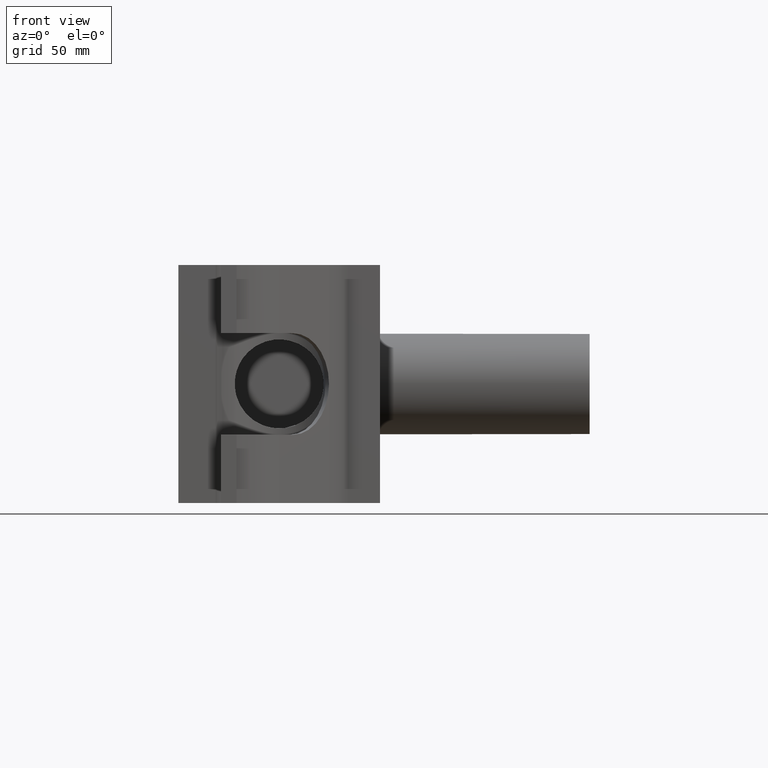
[diagram: clean part render]
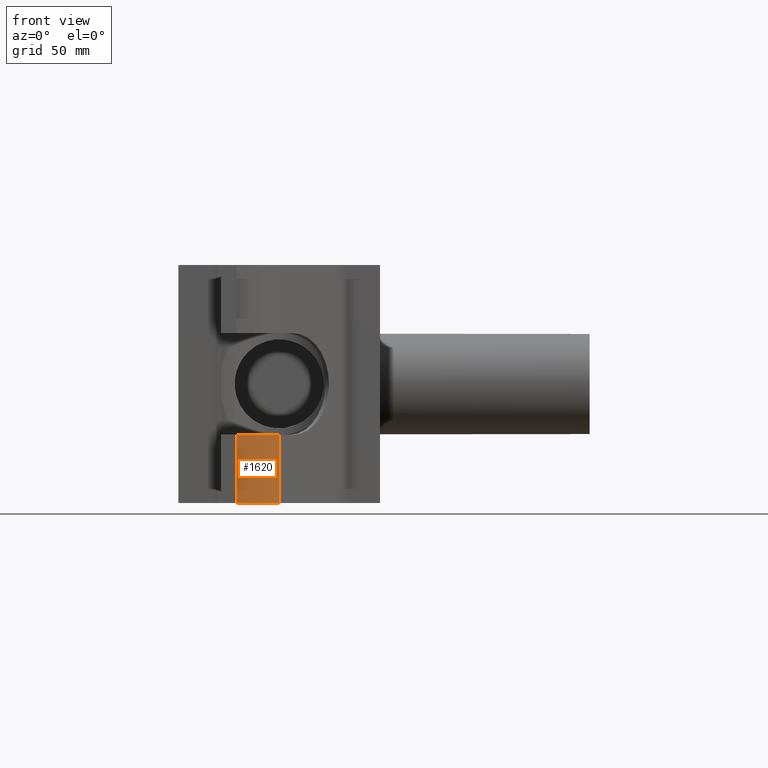
[diagram: same view with one face highlighted and labeled with its STEP entity id]
A machine part, front view. The second image highlights one B-rep face of the part: STEP entity #1620.
In plain terms, the highlighted cylindrical surface (partial cylindrical patch) has radius 34.9751 mm, axis along (0, 0, -1).
Its self-contained STEP definition (entity closure, byte-faithful):
#140=LINE('',#3262,#275);
#147=LINE('',#3275,#282);
#275=VECTOR('',#2222,33.8);
#282=VECTOR('',#2233,33.8);
#369=CYLINDRICAL_SURFACE('',#1789,34.9751164565775);
#464=FACE_OUTER_BOUND('',#598,.T.);
#598=EDGE_LOOP('',(#1407,#1408,#1409,#1410));
#667=CIRCLE('',#1770,34.9751164565775);
#674=CIRCLE('',#1790,34.9751164565775);
#796=VERTEX_POINT('',#3214);
#797=VERTEX_POINT('',#3216);
#810=VERTEX_POINT('',#3261);
#814=VERTEX_POINT('',#3273);
#988=EDGE_CURVE('',#797,#796,#667,.T.);
#1011=EDGE_CURVE('',#797,#810,#140,.T.);
#1018=EDGE_CURVE('',#796,#814,#147,.T.);
#1021=EDGE_CURVE('',#810,#814,#674,.T.);
#1407=ORIENTED_EDGE('',*,*,#988,.T.);
#1408=ORIENTED_EDGE('',*,*,#1018,.T.);
#1409=ORIENTED_EDGE('',*,*,#1021,.F.);
#1410=ORIENTED_EDGE('',*,*,#1011,.F.);
#1620=ADVANCED_FACE('',(#464),#369,.T.);
#1770=AXIS2_PLACEMENT_3D('',#3217,#2174,#2175);
#1789=AXIS2_PLACEMENT_3D('',#3280,#2238,#2239);
#1790=AXIS2_PLACEMENT_3D('',#3281,#2240,#2241);
#2174=DIRECTION('center_axis',(-7.47663076451472E-16,-7.47663074675932E-16,
-1.));
#2175=DIRECTION('ref_axis',(-0.119193476174969,-0.992871046630592,0.));
#2222=DIRECTION('',(0.,0.,-1.));
#2233=DIRECTION('',(0.,0.,-1.));
#2238=DIRECTION('center_axis',(0.,0.,-1.));
#2239=DIRECTION('ref_axis',(-0.119193476174969,-0.992871046630592,0.));
#2240=DIRECTION('center_axis',(0.,0.,-1.));
#2241=DIRECTION('ref_axis',(-0.119193476174969,-0.992871046630592,0.));
#3214=CARTESIAN_POINT('',(-21.0749478174158,-59.514629718263,-25.2));
#3216=CARTESIAN_POINT('',(-1.1746235539789E-7,-49.4622840972015,-25.2));
#3217=CARTESIAN_POINT('Origin',(-24.731142107332,-24.7311420486008,-25.2));
#3261=CARTESIAN_POINT('',(-1.1746235539789E-7,-49.4622840972015,-59.));
#3262=CARTESIAN_POINT('',(-1.1746235539789E-7,-49.4622840972015,59.));
#3273=CARTESIAN_POINT('',(-21.0749478174158,-59.514629718263,-59.));
#3275=CARTESIAN_POINT('',(-21.0749478174158,-59.514629718263,59.));
#3280=CARTESIAN_POINT('Origin',(-24.731142107332,-24.7311420486008,59.));
#3281=CARTESIAN_POINT('Origin',(-24.731142107332,-24.7311420486008,-59.));